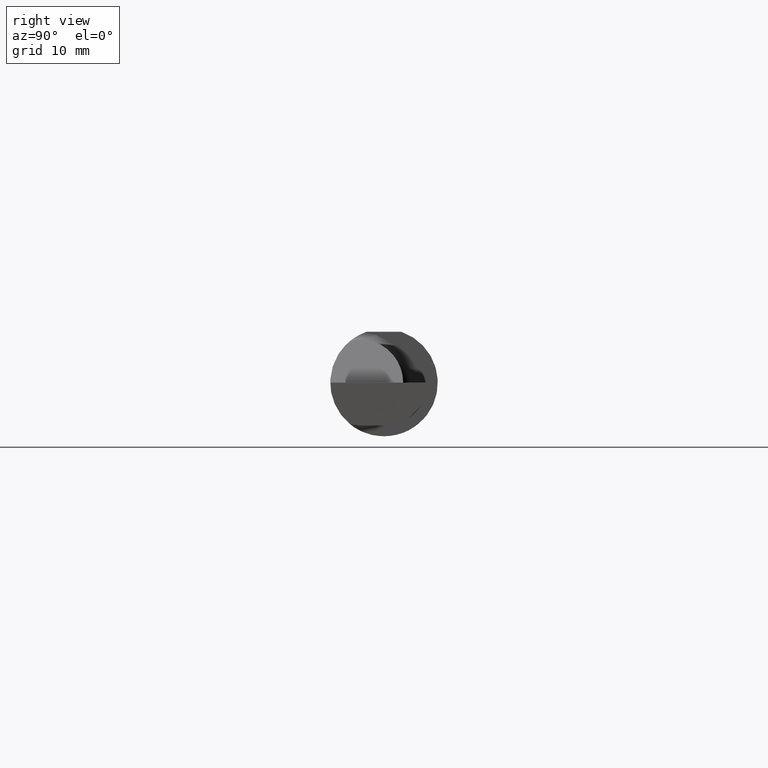
[diagram: clean part render]
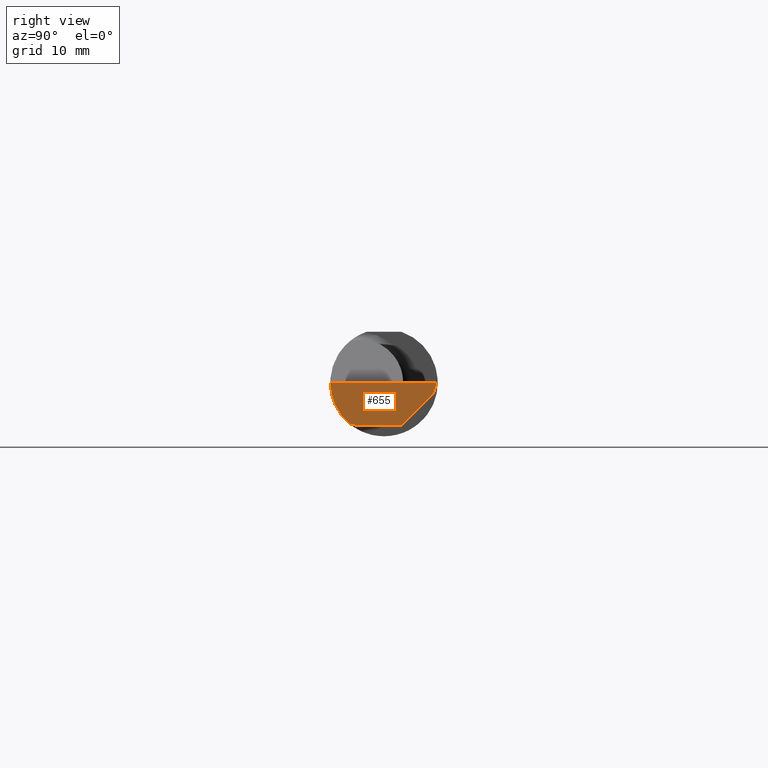
[diagram: same view with one face highlighted and labeled with its STEP entity id]
A machine part, right view. The second image highlights one B-rep face of the part: STEP entity #655.
In plain terms, the highlighted planar face has unit normal (-0.9995, 0.0174, 0.0262).
Its self-contained STEP definition (entity closure, byte-faithful):
#3 = CARTESIAN_POINT ( 'NONE',  ( 2.498695265107655938, 0.1701492753368748778, -0.04015377620627467309 ) ) ;
#5 = LINE ( 'NONE', #782, #427 ) ;
#22 = VERTEX_POINT ( 'NONE', #755 ) ;
#29 = CARTESIAN_POINT ( 'NONE',  ( 2.499908263133603814, 0.1837144758152614021, -0.002879247381999359371 ) ) ;
#34 = ORIENTED_EDGE ( 'NONE', *, *, #557, .F. ) ;
#44 =( BOUNDED_CURVE ( )  B_SPLINE_CURVE ( 3, ( #142, #201, #917, #607 ),
 .UNSPECIFIED., .F., .F. ) 
 B_SPLINE_CURVE_WITH_KNOTS ( ( 4, 4 ),
 ( 0.08839520912052888091, 0.9829226100289757406 ),
 .UNSPECIFIED. ) 
 CURVE ( )  GEOMETRIC_REPRESENTATION_ITEM ( )  RATIONAL_B_SPLINE_CURVE ( ( 1.000000000000000000, 0.9344226172588803170, 0.9344226172588803170, 1.000000000000000000 ) ) 
 REPRESENTATION_ITEM ( '' )  );
#46 = DIRECTION ( 'NONE',  ( -0.9995050723230146650, 0.01744642593347454917, 0.02617694830787320806 ) ) ;
#71 = LINE ( 'NONE', #3, #168 ) ;
#81 = LINE ( 'NONE', #29, #617 ) ;
#88 = ORIENTED_EDGE ( 'NONE', *, *, #574, .T. ) ;
#96 = LINE ( 'NONE', #541, #704 ) ;
#118 = CARTESIAN_POINT ( 'NONE',  ( 2.500000000000000000, 0.1846500000000000363, 0.000000000000000000 ) ) ;
#142 = CARTESIAN_POINT ( 'NONE',  ( 2.490903355898019367, -0.1172600179964007477, -0.1461167706989302817 ) ) ;
#168 = VECTOR ( 'NONE', #286, 39.37007874015748143 ) ;
#175 = DIRECTION ( 'NONE',  ( -0.01745240643727703073, -0.9998476951563912696, 0.000000000000000000 ) ) ;
#201 = CARTESIAN_POINT ( 'NONE',  ( 2.491063981715931686, -0.1623470442677541759, -0.1099340280425337851 ) ) ;
#217 = EDGE_CURVE ( 'NONE', #889, #594, #81, .T. ) ;
#276 = CARTESIAN_POINT ( 'NONE',  ( 2.491393556036329837, -0.08334999999999992415, -0.1499999999999999944 ) ) ;
#286 = DIRECTION ( 'NONE',  ( -0.03084697155452398656, -0.7067702824630919256, -0.7067702824630897052 ) ) ;
#290 = DIRECTION ( 'NONE',  ( -0.03028809442608968241, -0.3088752205991470157, -0.9506201814793669991 ) ) ;
#311 = CARTESIAN_POINT ( 'NONE',  ( 2.490903355898019367, -0.1172600179964007477, -0.1461167706989302817 ) ) ;
#318 = EDGE_CURVE ( 'NONE', #594, #22, #71, .T. ) ;
#427 = VECTOR ( 'NONE', #786, 39.37007874015748143 ) ;
#432 = VERTEX_POINT ( 'NONE', #673 ) ;
#456 = CARTESIAN_POINT ( 'NONE',  ( 2.500000000000000000, 0.1846500000000000363, 0.000000000000000000 ) ) ;
#460 = VERTEX_POINT ( 'NONE', #311 ) ;
#462 = FACE_OUTER_BOUND ( 'NONE', #815, .T. ) ;
#480 = CARTESIAN_POINT ( 'NONE',  ( 2.490903355898019367, -0.1172600179964007477, -0.1461167706989302817 ) ) ;
#508 = ORIENTED_EDGE ( 'NONE', *, *, #318, .F. ) ;
#519 = VERTEX_POINT ( 'NONE', #743 ) ;
#538 = AXIS2_PLACEMENT_3D ( 'NONE', #118, #46, #613 ) ;
#541 = CARTESIAN_POINT ( 'NONE',  ( 2.500000000000000000, 0.1846500000000000363, 0.000000000000000000 ) ) ;
#542 = ORIENTED_EDGE ( 'NONE', *, *, #788, .F. ) ;
#557 = EDGE_CURVE ( 'NONE', #460, #432, #44, .T. ) ;
#569 =( BOUNDED_CURVE ( )  B_SPLINE_CURVE ( 3, ( #480, #702, #770, #276 ),
 .UNSPECIFIED., .F., .F. ) 
 B_SPLINE_CURVE_WITH_KNOTS ( ( 4, 4 ),
 ( 0.3598356817164768406, 0.5878737167659217056 ),
 .UNSPECIFIED. ) 
 CURVE ( )  GEOMETRIC_REPRESENTATION_ITEM ( )  RATIONAL_B_SPLINE_CURVE ( ( 1.000000000000000000, 0.9956712472009929815, 0.9956712472009929815, 1.000000000000000000 ) ) 
 REPRESENTATION_ITEM ( '' )  );
#574 = EDGE_CURVE ( 'NONE', #460, #519, #569, .T. ) ;
#594 = VERTEX_POINT ( 'NONE', #779 ) ;
#607 = CARTESIAN_POINT ( 'NONE',  ( 2.493506715846705468, -0.1873499999999999888, 0.000000000000000000 ) ) ;
#613 = DIRECTION ( 'NONE',  ( 0.02618093305822682959, 0.000000000000000000, 0.9996572206232497981 ) ) ;
#617 = VECTOR ( 'NONE', #290, 39.37007874015748854 ) ;
#621 = ORIENTED_EDGE ( 'NONE', *, *, #897, .T. ) ;
#655 = ADVANCED_FACE ( 'NONE', ( #462 ), #678, .F. ) ;
#658 = ORIENTED_EDGE ( 'NONE', *, *, #217, .F. ) ;
#673 = CARTESIAN_POINT ( 'NONE',  ( 2.493506715846705468, -0.1873499999999999888, 0.000000000000000000 ) ) ;
#678 = PLANE ( 'NONE',  #538 ) ;
#702 = CARTESIAN_POINT ( 'NONE',  ( 2.491029992219911282, -0.1061291577212408743, -0.1486999626928445783 ) ) ;
#704 = VECTOR ( 'NONE', #175, 39.37007874015748143 ) ;
#743 = CARTESIAN_POINT ( 'NONE',  ( 2.491393556036329837, -0.08334999999999992415, -0.1499999999999999944 ) ) ;
#755 = CARTESIAN_POINT ( 'NONE',  ( 2.493901029378150724, 0.06030305154314920951, -0.1499999999999999944 ) ) ;
#770 = CARTESIAN_POINT ( 'NONE',  ( 2.491194102659540111, -0.09477667630339413340, -0.1499999999999999667 ) ) ;
#779 = CARTESIAN_POINT ( 'NONE',  ( 2.498789266617083449, 0.1723030515431495657, -0.03799999999999999212 ) ) ;
#782 = CARTESIAN_POINT ( 'NONE',  ( 2.494809345111306254, 0.1123404250442412988, -0.1499999999999999944 ) ) ;
#786 = DIRECTION ( 'NONE',  ( -0.01745240643727703073, -0.9998476951563912696, 0.000000000000000000 ) ) ;
#788 = EDGE_CURVE ( 'NONE', #22, #519, #5, .T. ) ;
#815 = EDGE_LOOP ( 'NONE', ( #88, #542, #508, #658, #621, #34 ) ) ;
#889 = VERTEX_POINT ( 'NONE', #456 ) ;
#897 = EDGE_CURVE ( 'NONE', #889, #432, #96, .T. ) ;
#917 = CARTESIAN_POINT ( 'NONE',  ( 2.491992669264299742, -0.1873499999999999888, -0.05781030015605114619 ) ) ;